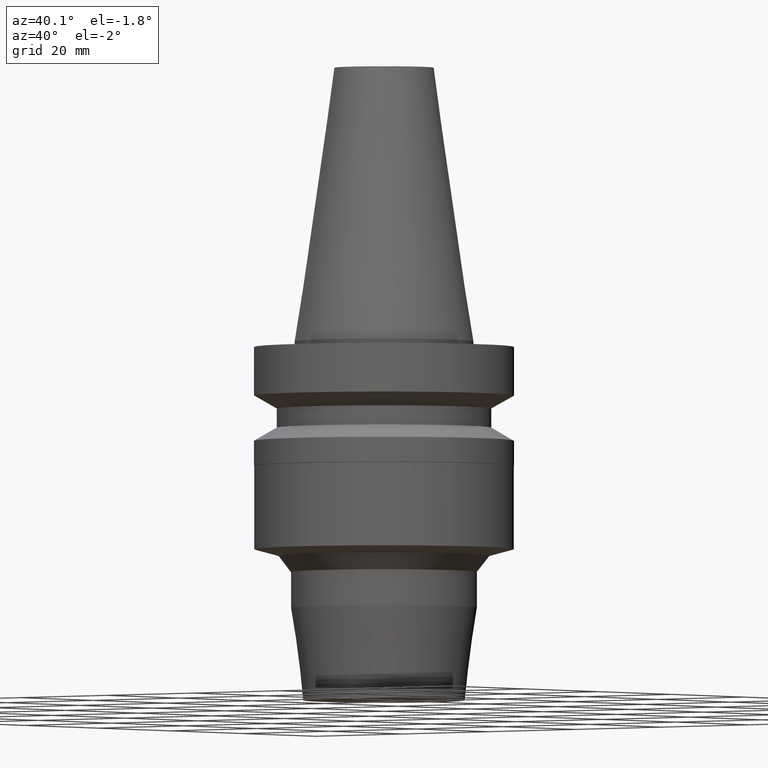
[diagram: clean part render]
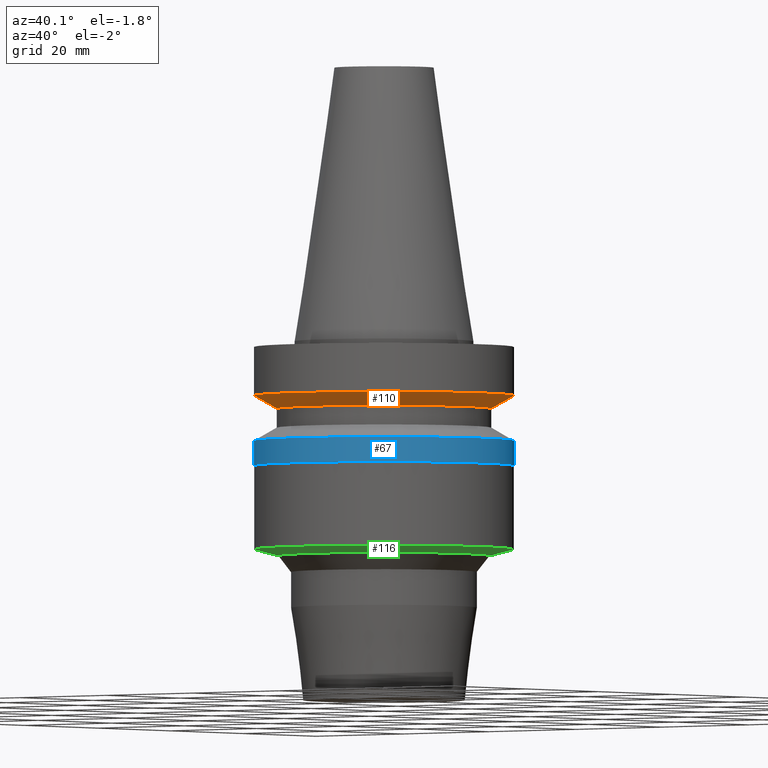
[diagram: same view with three faces highlighted in distinct colors, each labeled with its STEP entity id]
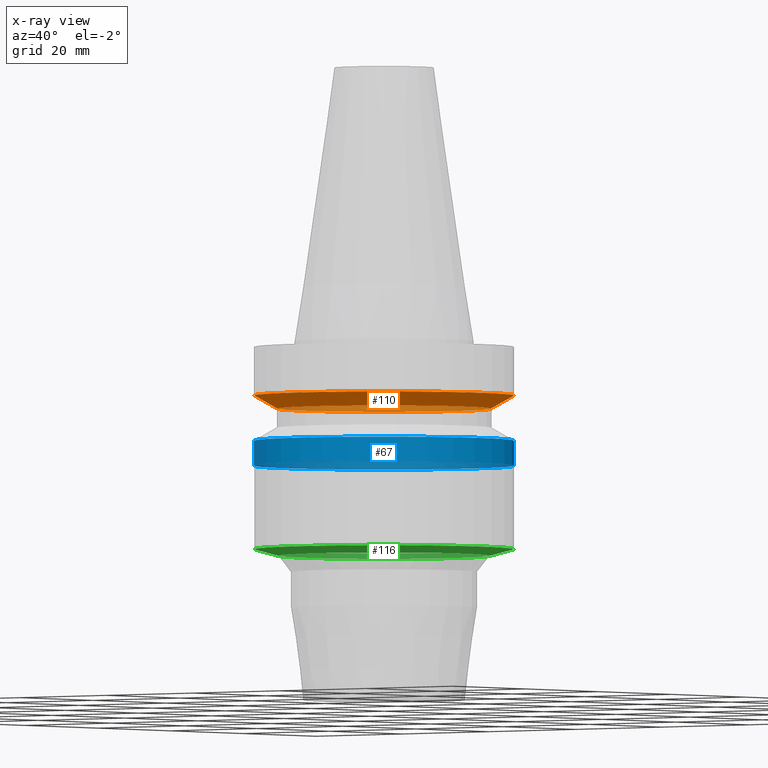
[diagram: x-ray of the same camera — body ghosted, the three highlighted faces saturated]
A machine part, auxiliary view with three faces highlighted in distinct colors.
The next image is the same camera in x-ray (body ghosted, the three faces saturated) — at least one of them is partly hidden behind the body in this view.
Their STEP definitions:

[orange] entity #110 — the highlighted conical surface has half-angle 60 deg.
#82=EDGE_CURVE('Unnamed[1]',#192,#192,#193,.T.);
#102=EDGE_CURVE('Unnamed[1]',#224,#224,#225,.T.);
#110=ADVANCED_FACE('Unnamed[1]',(#236,#237),#238,.T.);
#192=VERTEX_POINT('',#334);
#193=CIRCLE('',#335,19.0);
#224=VERTEX_POINT('',#374);
#225=CIRCLE('',#375,23.0);
#236=FACE_BOUND('',#389,.T.);
#237=FACE_BOUND('',#390,.T.);
#238=CONICAL_SURFACE('',#391,21.0,1.04719755058881);
#334=CARTESIAN_POINT('',(7.29240495619202E-016,19.0,-11.90940108));
#335=AXIS2_PLACEMENT_3D('',#484,#485,#486);
#374=CARTESIAN_POINT('',(5.87830463590729E-016,23.0,-9.59999999999999));
#375=AXIS2_PLACEMENT_3D('',#520,#521,#522);
#389=EDGE_LOOP('',(#533));
#390=EDGE_LOOP('',(#534));
#391=AXIS2_PLACEMENT_3D('',#535,#536,#537);
#484=CARTESIAN_POINT('',(7.29240495619202E-016,1.4584809912384E-015,-11.90940108));
#485=DIRECTION('',(6.12323399573677E-017,1.22464679914735E-016,-1.0));
#486=DIRECTION('',(-1.23259516440783E-032,1.0,1.22464679914735E-016));
#520=CARTESIAN_POINT('',(5.87830463590729E-016,1.17566092718146E-015,-9.59999999999999));
#521=DIRECTION('',(6.12323399573677E-017,1.22464679914735E-016,-1.0));
#522=DIRECTION('',(-1.23259516440783E-032,1.0,1.22464679914735E-016));
#533=ORIENTED_EDGE('',*,*,#82,.F.);
#534=ORIENTED_EDGE('',*,*,#102,.T.);
#535=CARTESIAN_POINT('',(6.58535479604966E-016,1.31707095920993E-015,-10.75470054));
#536=DIRECTION('',(-6.12323399573677E-017,-1.22464679914735E-016,1.0));
#537=DIRECTION('',(-1.23259516440783E-032,1.0,1.22464679914735E-016));

[blue] entity #67 — the highlighted cylindrical surface (bore or boss wall) has radius 23 mm, axis along (0, 0, -1).
#67=ADVANCED_FACE('Unnamed[1]',(#170,#171),#172,.T.);
#104=EDGE_CURVE('Unnamed[1]',#227,#227,#228,.T.);
#123=EDGE_CURVE('Unnamed[1]',#258,#258,#259,.T.);
#170=FACE_BOUND('',#307,.T.);
#171=FACE_BOUND('',#308,.T.);
#172=CYLINDRICAL_SURFACE('',#309,23.0);
#227=VERTEX_POINT('',#378);
#228=CIRCLE('',#379,23.0);
#258=VERTEX_POINT('',#416);
#259=CIRCLE('',#417,23.0);
#307=EDGE_LOOP('',(#461));
#308=EDGE_LOOP('',(#462));
#309=AXIS2_PLACEMENT_3D('',#463,#464,#465);
#378=CARTESIAN_POINT('',(1.34711147906216E-015,23.0,-22.0000000000012));
#379=AXIS2_PLACEMENT_3D('',#523,#524,#525);
#416=CARTESIAN_POINT('',(1.07768918324967E-015,23.0,-17.6));
#417=AXIS2_PLACEMENT_3D('',#559,#560,#561);
#461=ORIENTED_EDGE('',*,*,#104,.F.);
#462=ORIENTED_EDGE('',*,*,#123,.T.);
#463=CARTESIAN_POINT('',(1.21240033115592E-015,2.42480066231183E-015,-19.8000000000006));
#464=DIRECTION('',(6.12323399573677E-017,1.22464679914735E-016,-1.0));
#465=DIRECTION('',(-1.23259516440783E-032,1.0,1.22464679914735E-016));
#523=CARTESIAN_POINT('',(1.34711147906216E-015,2.69422295812432E-015,-22.0000000000012));
#524=DIRECTION('',(6.12323399573677E-017,1.22464679914735E-016,-1.0));
#525=DIRECTION('',(-1.23259516440783E-032,1.0,1.22464679914735E-016));
#559=CARTESIAN_POINT('',(1.07768918324967E-015,2.15537836649934E-015,-17.6));
#560=DIRECTION('',(6.12323399573677E-017,1.22464679914735E-016,-1.0));
#561=DIRECTION('',(-1.23259516440783E-032,1.0,1.22464679914735E-016));

[green] entity #116 — the highlighted conical surface has half-angle 75 deg.
#116=ADVANCED_FACE('Unnamed[1]',(#246,#247),#248,.T.);
#130=EDGE_CURVE('Unnamed[1]',#269,#269,#270,.T.);
#135=EDGE_CURVE('Unnamed[1]',#276,#276,#277,.T.);
#246=FACE_BOUND('',#401,.T.);
#247=FACE_BOUND('',#402,.T.);
#248=CONICAL_SURFACE('',#403,20.8367714323463,1.30899693899576);
#269=VERTEX_POINT('',#430);
#270=CIRCLE('',#431,22.95);
#276=VERTEX_POINT('',#439);
#277=CIRCLE('',#440,18.7235428646925);
#401=EDGE_LOOP('',(#545));
#402=EDGE_LOOP('',(#546));
#403=AXIS2_PLACEMENT_3D('',#547,#548,#549);
#430=CARTESIAN_POINT('',(2.25335011043121E-015,22.95,-36.8000000000013));
#431=AXIS2_PLACEMENT_3D('',#571,#572,#573);
#439=CARTESIAN_POINT('',(2.32269425215606E-015,18.7235428646925,-37.9324757762517));
#440=AXIS2_PLACEMENT_3D('',#579,#580,#581);
#545=ORIENTED_EDGE('',*,*,#135,.F.);
#546=ORIENTED_EDGE('',*,*,#130,.T.);
#547=CARTESIAN_POINT('',(2.28802218129363E-015,4.57604436258727E-015,-37.3662378881265));
#548=DIRECTION('',(-6.12323399573676E-017,-1.22464679914735E-016,1.0));
#549=DIRECTION('',(-1.23259516440783E-032,1.0,1.22464679914735E-016));
#571=CARTESIAN_POINT('',(2.25335011043121E-015,4.50670022086242E-015,-36.8000000000013));
#572=DIRECTION('',(6.12323399573677E-017,1.22464679914735E-016,-1.0));
#573=DIRECTION('',(-1.23259516440783E-032,1.0,1.22464679914735E-016));
#579=CARTESIAN_POINT('',(2.32269425215606E-015,4.64538850431211E-015,-37.9324757762517));
#580=DIRECTION('',(6.12323399573677E-017,1.22464679914735E-016,-1.0));
#581=DIRECTION('',(-1.23259516440783E-032,1.0,1.22464679914735E-016));